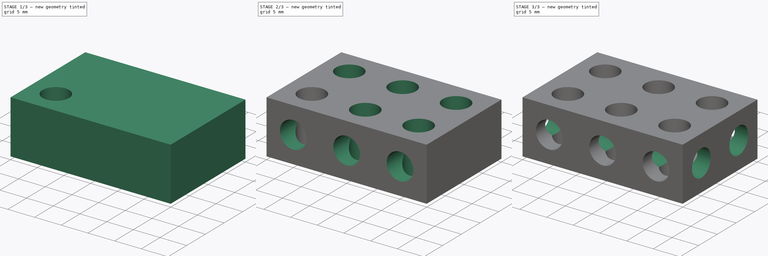
[diagram: build sequence overview — one tinted view per stage of 3, left to right]
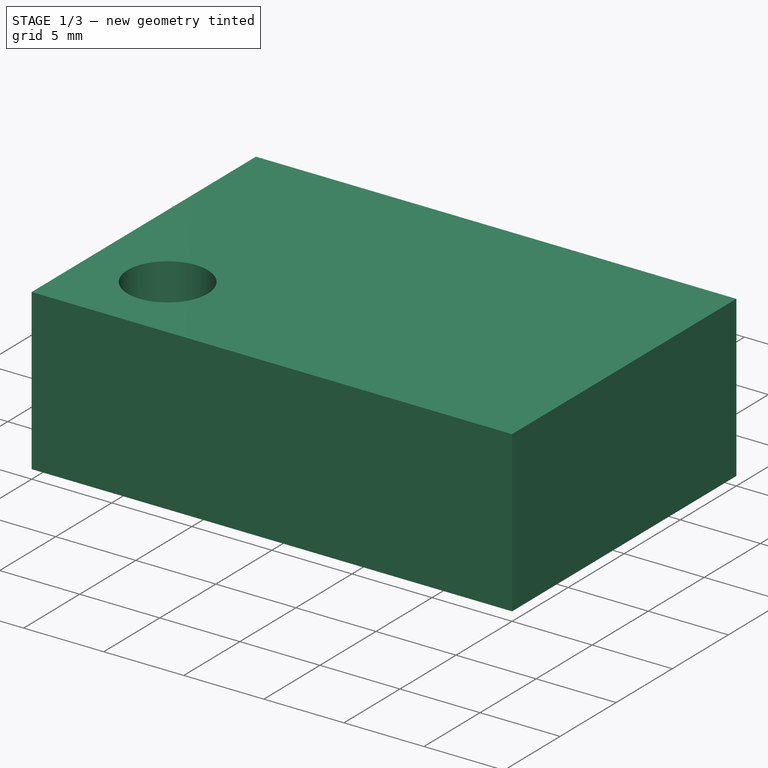
[diagram: stage 1 of 3 — iso view after this stage's code; geometry added in this stage tinted green]
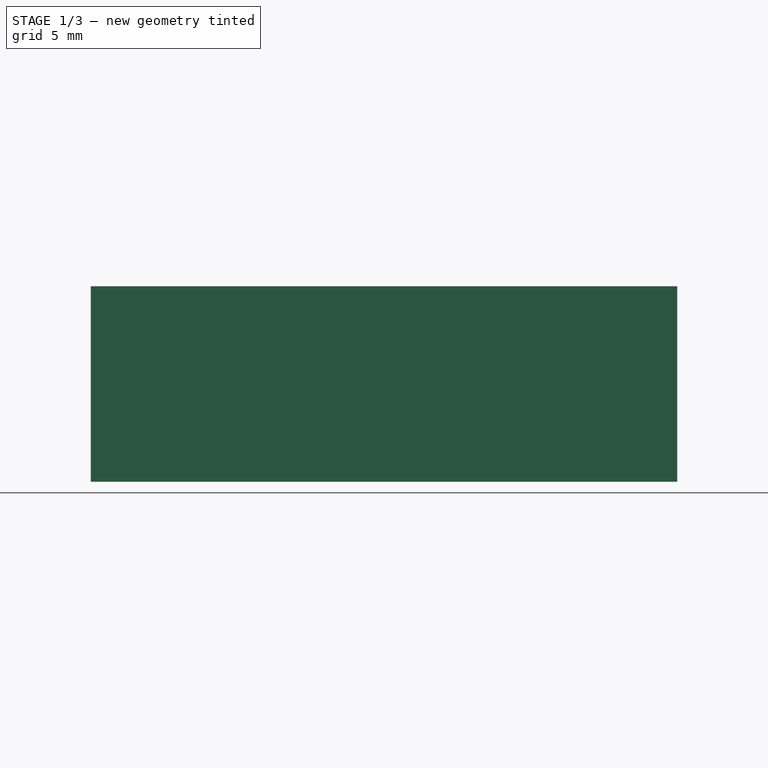
[diagram: stage 1 of 3 — front view after this stage's code; geometry added in this stage tinted green]
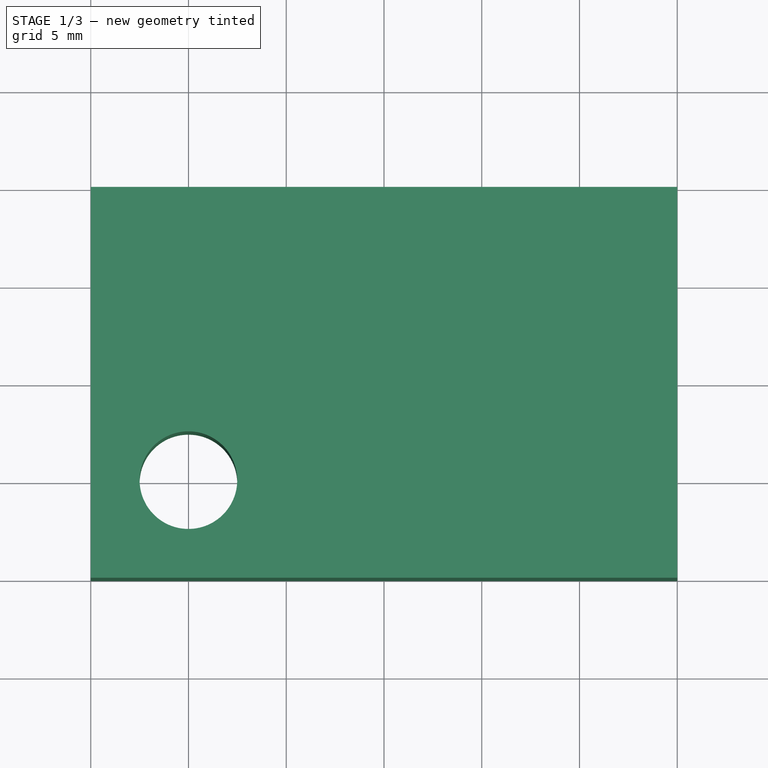
[diagram: stage 1 of 3 — top view after this stage's code; geometry added in this stage tinted green]
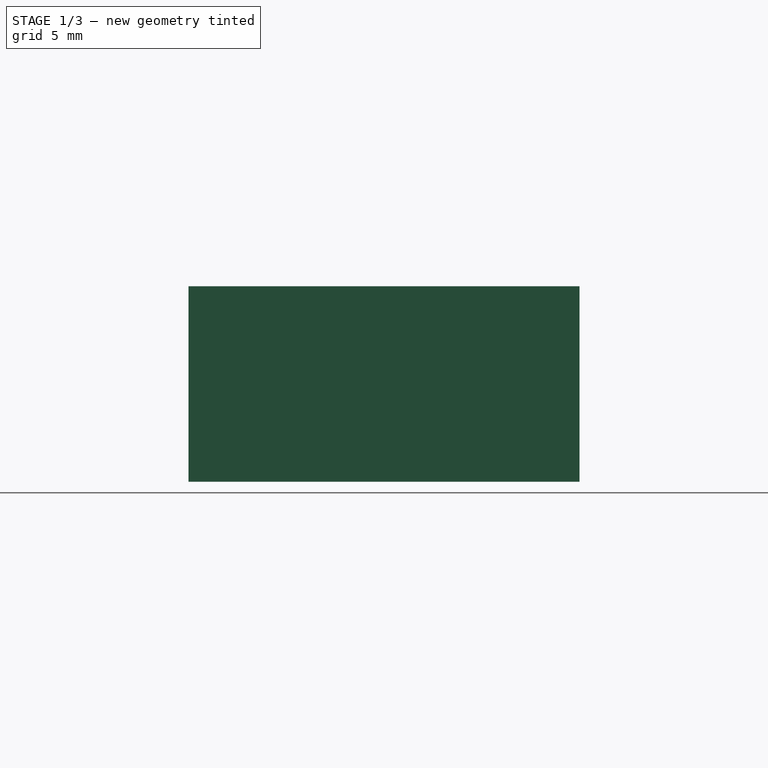
[diagram: stage 1 of 3 — right view after this stage's code; geometry added in this stage tinted green]
FCSTD DOCUMENT  (FreeCAD 2023.131R26244 +5365 (Git))
Label: 123 Block
License: All rights reserved
LicenseURL: http://en.wikipedia.org/wiki/All_rights_reserved
objects: PartDesign::LinearPattern×6, Sketcher::SketchObject×4, PartDesign::Pocket×3, PartDesign::MultiTransform×3, Spreadsheet::Sheet×1, PartDesign::Pad×1, PartDesign::Body×1
note: 48 computed .brp shape members not serialized (recipe doc carries the construction recipe); baked Part::Feature solids carry a one-line shape summary decoded from their .brp

FEATURE [Spreadsheet::Sheet] Spreadsheet  label="Parameters"
  PythonMode = false
  ShowCells = 0
  TreeRank = 1
  cells = A1=First Dimension; B1(First_Hole_Count)=1; A2=Second Dimension; B2(Second_Hole_Count)=2; A3=Third Dimension; B3(Third_Hole_Count)=3; A4=Unit of Measure; B4=cm; C4=One of the following: in or cm; A5=Hole Diameter Percent; B5=50; C5=Percecnt of a single unit; A6=Holes per Unit; B6(Holes_Per_Unit)=1; A7=Centimeters per Inch; B7=2.54; A9=First Actual Dimension; B9(First_Dimension)==B1 * (B4 == <<in>> ? B7 : 1) * 10; A10=Second Actual Dimension; B10(Second_Dimension)==B2 * (B4 == <<in>> ? B7 : 1) * 10; A11=Third Actual Dimension; B11(Third_Dimension)==B3 * (B4 == <<in>> ? B7 : 1) * 10; A12=Hole Diameter; B12(Hole_Diameter)==(B4 == <<in>> ? B7 : 1) * 10 * B5 / 100 * 0.999
FEATURE [Sketcher::SketchObject] Sketch
  ArcFitTolerance = 1e-06
  AttachmentSupport = -> [XY_Plane]
  ExternalBSplineMaxDegree = 5
  ExternalBSplineTolerance = 0.0001
  FullyConstrained = true
  InternalTolerance = 1e-06
  InvalidShape = false
  MakeInternals = false
  MapMode = 5
  Support = -> [XY_Plane]
  TreeRank = 12
  ValidateShape = true
  expr: Constraints[10] = <<Parameters>>.Second_Dimension / 2
  expr: Constraints[11] = <<Parameters>>.Third_Dimension / 2
  expr: Constraints[8] = <<Parameters>>.Third_Dimension
  expr: Constraints[9] = <<Parameters>>.Second_Dimension
  sketch-geometry (4):
    g0: LineSegment StartX=-15 StartY=10 StartZ=0 EndX=15 EndY=10 EndZ=0
    g1: LineSegment StartX=15 StartY=10 StartZ=0 EndX=15 EndY=-10 EndZ=0
    g2: LineSegment StartX=15 StartY=-10 StartZ=0 EndX=-15 EndY=-10 EndZ=0
    g3: LineSegment StartX=-15 StartY=-10 StartZ=0 EndX=-15 EndY=10 EndZ=0
  constraints (12):
    c: Coincident(g0,g1)
    c: Coincident(g1,g2)
    c: Coincident(g2,g3)
    c: Coincident(g3,g0)
    c: Horizontal(g0)
    c: Horizontal(g2)
    c: Vertical(g1)
    c: Vertical(g3)
    c: Distance(g0,g0) = 30
    c: Distance(g0,g1) = 20
    c: DistanceY(g-1,g0) = 10
    c: DistanceX(g0,g-1) = 15
FEATURE [PartDesign::Pad] Pad  label="Block"
  AddSubType = 0
  AlongSketchNormal = false
  AutoTaperInnerAngle = true
  CheckUpToFaceLimits = true
  ClaimChildren = false
  Direction = (0,0,1)
  Fit = 0
  FitJoin = 0
  InnerFit = 0
  InnerFitJoin = 0
  InvalidShape = false
  Length = 10
  Length2 = 100
  Linearize = true
  NewSolid = false
  Profile = -> Sketch
  Suppress = false
  TaperInnerAngle = 0
  TaperInnerAngleRev = 0
  TreeRank = 13
  Type = 0
  ValidateShape = true
  _ProfileBasedVersion = 1
  expr: Length = <<Parameters>>.First_Dimension
FEATURE [Sketcher::SketchObject] Sketch001
  ArcFitTolerance = 1e-06
  AttachmentSupport = -> [Pad]
  ExternalBSplineMaxDegree = 5
  ExternalBSplineTolerance = 0.0001
  FullyConstrained = true
  InternalTolerance = 1e-06
  InvalidShape = false
  MakeInternals = false
  MapMode = 5
  Placement = pos=(0,0,10) rot=(0,0,1;0rad)
  Support = -> [Pad]
  TreeRank = 14
  ValidateShape = true
  expr: Constraints[0] = <<Parameters>>.Hole_Diameter
  expr: Constraints[1] = <<Parameters>>.Second_Dimension / 2 - <<Parameters>>.Hole_Diameter
  expr: Constraints[2] = <<Parameters>>.Third_Dimension / 2 - <<Parameters>>.Hole_Diameter
  sketch-geometry (1):
    g0: Circle CenterX=-10.005 CenterY=-5.005 CenterZ=0 NormalX=0 NormalY=0 NormalZ=1 AngleXU=0 Radius=2.4975
  constraints (3):
    c: Diameter(g0) = 4.995
    c: DistanceY(g0,g-1) = 5.005
    c: DistanceX(g0,g-1) = 10.005
FEATURE [PartDesign::Pocket] Pocket  label="Top Pocket"
  AddSubType = 1
  AutoTaperInnerAngle = true
  BaseFeature = -> Pad
  CheckUpToFaceLimits = true
  ClaimChildren = false
  Fit = 0
  FitJoin = 0
  InnerFit = 0
  InnerFitJoin = 0
  InvalidShape = false
  Length = 10
  Length2 = 100
  Linearize = true
  NewSolid = false
  Profile = -> Sketch001
  Suppress = false
  TaperInnerAngle = 0
  TaperInnerAngleRev = 0
  TreeRank = 15
  Type = 0
  ValidateShape = true
  _ProfileBasedVersion = 1
  _Version = 1
  expr: Length = <<Parameters>>.First_Dimension
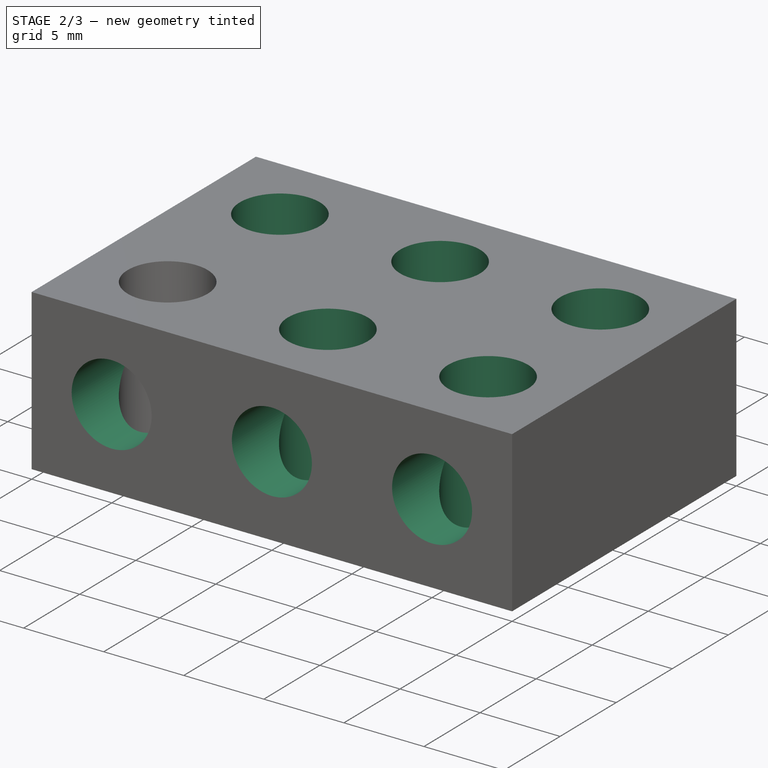
[diagram: stage 2 of 3 — iso view after this stage's code; geometry added in this stage tinted green]
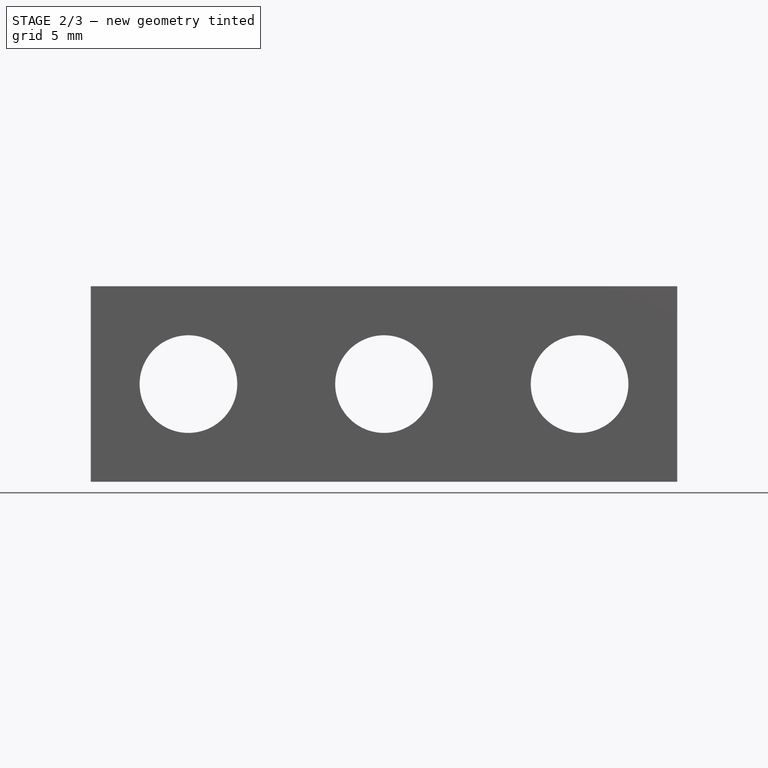
[diagram: stage 2 of 3 — front view after this stage's code; geometry added in this stage tinted green]
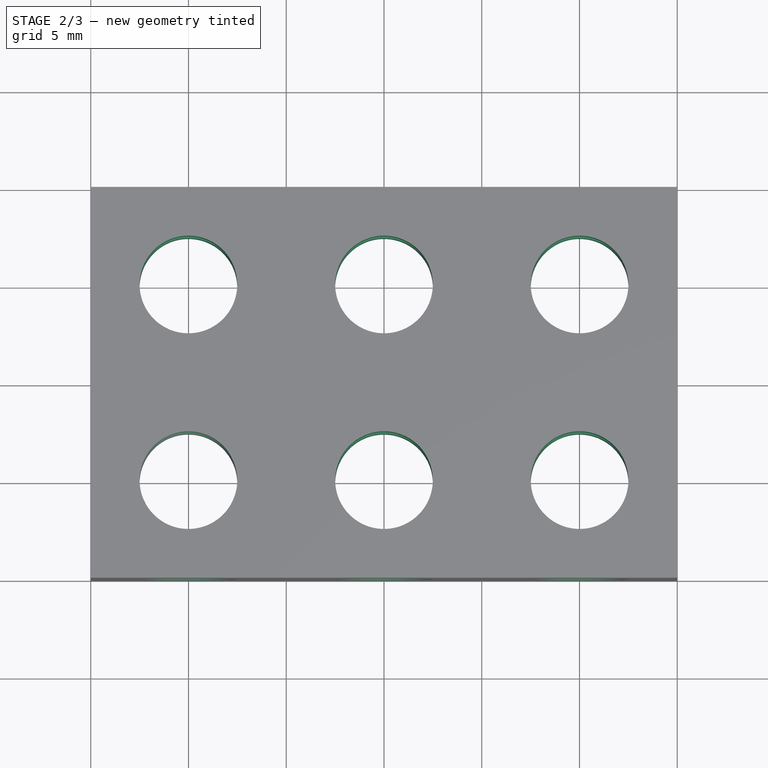
[diagram: stage 2 of 3 — top view after this stage's code; geometry added in this stage tinted green]
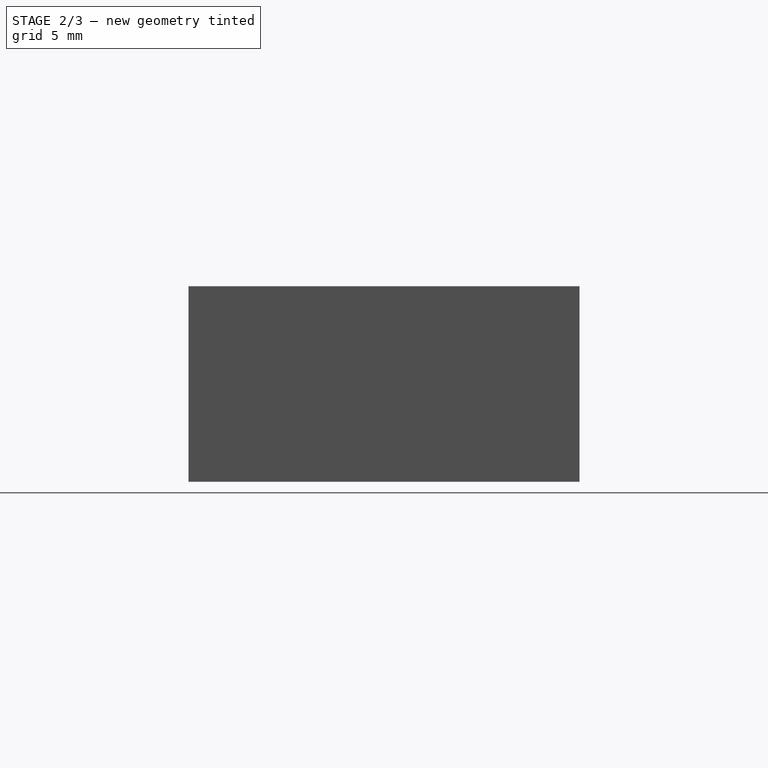
[diagram: stage 2 of 3 — right view after this stage's code; geometry added in this stage tinted green]
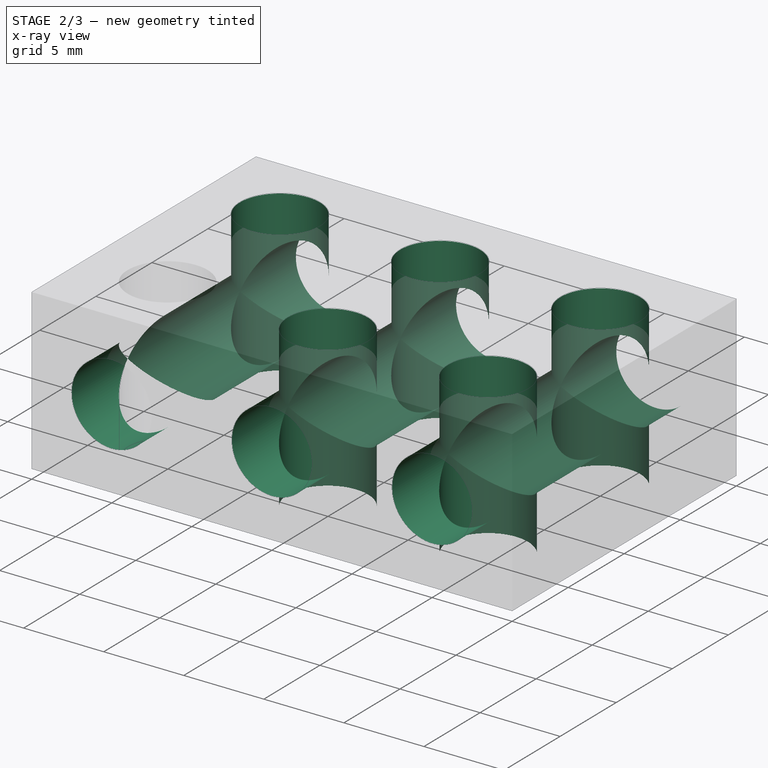
[diagram: stage 2 of 3 — x-ray composite at the iso view; earlier geometry ghosted, this stage's added geometry solid]
FEATURE [PartDesign::LinearPattern] LinearPattern
  AddSubType = 0
  CopyShape = false
  Direction = -> X_Axis
  InvalidShape = false
  Length = 20.01
  NewSolid = false
  Occurrences = 3
  ParallelTransform = true
  SubTransform = true
  Suppress = false
  TreeRank = 17
  ValidateShape = true
  _Version = 3
  expr: Length = <<Parameters>>.Third_Dimension - <<Parameters>>.Hole_Diameter * 2
  expr: Occurrences = <<Parameters>>.Third_Hole_Count * <<Parameters>>.Holes_Per_Unit
FEATURE [PartDesign::LinearPattern] LinearPattern001
  AddSubType = 0
  CopyShape = false
  Direction = -> Y_Axis
  InvalidShape = false
  Length = 10.01
  NewSolid = false
  Occurrences = 2
  ParallelTransform = true
  SubTransform = true
  Suppress = false
  TreeRank = 18
  ValidateShape = true
  _Version = 3
  expr: Length = <<Parameters>>.Second_Dimension - <<Parameters>>.Hole_Diameter * 2
  expr: Occurrences = <<Parameters>>.Second_Hole_Count * <<Parameters>>.Holes_Per_Unit
FEATURE [PartDesign::MultiTransform] MultiTransform  label="Top Hole Array"
  AddSubType = 0
  BaseFeature = -> Pocket
  CopyShape = false
  InvalidShape = false
  NewSolid = false
  OriginalSubs = -> [Pocket]
  Originals = -> [Pocket]
  ParallelTransform = true
  SubTransform = true
  Suppress = false
  Transformations = -> [LinearPattern,LinearPattern001]
  TreeRank = 16
  ValidateShape = true
  _Version = 3
FEATURE [Sketcher::SketchObject] Sketch002
  ArcFitTolerance = 1e-06
  AttachmentSupport = -> [MultiTransform]
  ExternalBSplineMaxDegree = 5
  ExternalBSplineTolerance = 0.0001
  FullyConstrained = true
  InternalTolerance = 1e-06
  InvalidShape = false
  MakeInternals = false
  MapMode = 5
  Placement = pos=(0,-10,0) rot=(1,0,0;1.5708rad)
  Support = -> [MultiTransform]
  TreeRank = 19
  ValidateShape = true
  expr: Constraints[0] = <<Parameters>>.Hole_Diameter
  expr: Constraints[1] = <<Parameters>>.Third_Dimension / 2 - <<Parameters>>.Hole_Diameter
  expr: Constraints[2] = <<Parameters>>.Hole_Diameter
  sketch-geometry (1):
    g0: Circle CenterX=-10.005 CenterY=4.995 CenterZ=0 NormalX=0 NormalY=0 NormalZ=1 AngleXU=0 Radius=2.4975
  constraints (3):
    c: Diameter(g0) = 4.995
    c: DistanceX(g0,g-1) = 10.005
    c: DistanceY(g-1,g0) = 4.995
FEATURE [PartDesign::Pocket] Pocket001  label="Front Pockets"
  AddSubType = 1
  AutoTaperInnerAngle = true
  BaseFeature = -> MultiTransform
  CheckUpToFaceLimits = true
  ClaimChildren = false
  Fit = 0
  FitJoin = 0
  InnerFit = 0
  InnerFitJoin = 0
  InvalidShape = false
  Length = 20
  Length2 = 100
  Linearize = true
  NewSolid = false
  Profile = -> Sketch002
  Suppress = false
  TaperInnerAngle = 0
  TaperInnerAngleRev = 0
  TreeRank = 20
  Type = 0
  ValidateShape = true
  _ProfileBasedVersion = 1
  _Version = 1
  expr: Length = <<Parameters>>.Second_Dimension
FEATURE [PartDesign::LinearPattern] LinearPattern002
  AddSubType = 0
  CopyShape = false
  Direction = -> X_Axis
  InvalidShape = false
  Length = 20.01
  NewSolid = false
  Occurrences = 3
  ParallelTransform = true
  SubTransform = true
  Suppress = false
  TreeRank = 22
  ValidateShape = true
  _Version = 3
  expr: Length = <<Parameters>>.Third_Dimension - <<Parameters>>.Hole_Diameter * 2
  expr: Occurrences = <<Parameters>>.Third_Hole_Count * <<Parameters>>.Holes_Per_Unit
FEATURE [PartDesign::LinearPattern] LinearPattern003
  AddSubType = 0
  CopyShape = false
  Direction = -> Z_Axis
  InvalidShape = false
  Length = 0.01
  NewSolid = false
  Occurrences = 1
  ParallelTransform = true
  SubTransform = true
  Suppress = false
  TreeRank = 23
  ValidateShape = true
  _Version = 3
  expr: Length = <<Parameters>>.First_Dimension - <<Parameters>>.Hole_Diameter * 2
  expr: Occurrences = <<Parameters>>.First_Hole_Count * <<Parameters>>.Holes_Per_Unit
FEATURE [PartDesign::MultiTransform] MultiTransform001  label="Front Hole Array"
  AddSubType = 0
  BaseFeature = -> Pocket001
  CopyShape = false
  InvalidShape = false
  NewSolid = false
  OriginalSubs = -> [Pocket001]
  Originals = -> [Pocket001]
  ParallelTransform = true
  SubTransform = true
  Suppress = false
  Transformations = -> [LinearPattern002,LinearPattern003]
  TreeRank = 21
  ValidateShape = true
  _Version = 3
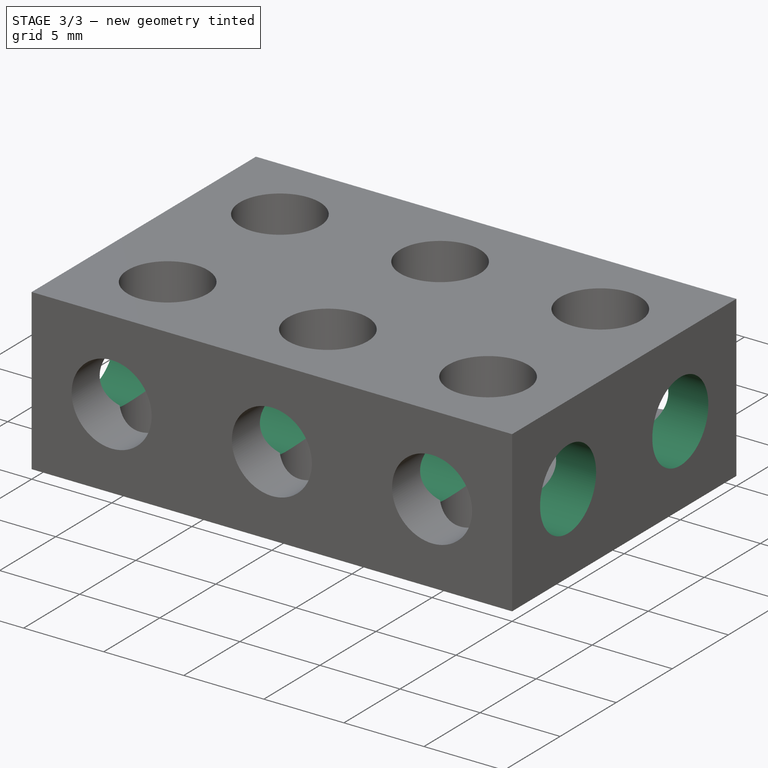
[diagram: stage 3 of 3 — iso view after this stage's code; geometry added in this stage tinted green]
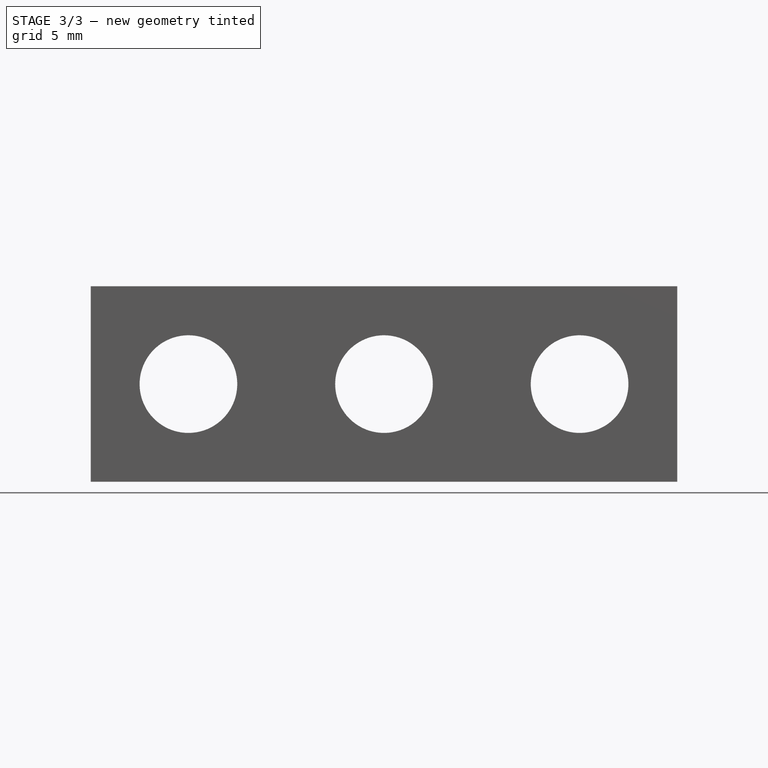
[diagram: stage 3 of 3 — front view after this stage's code; geometry added in this stage tinted green]
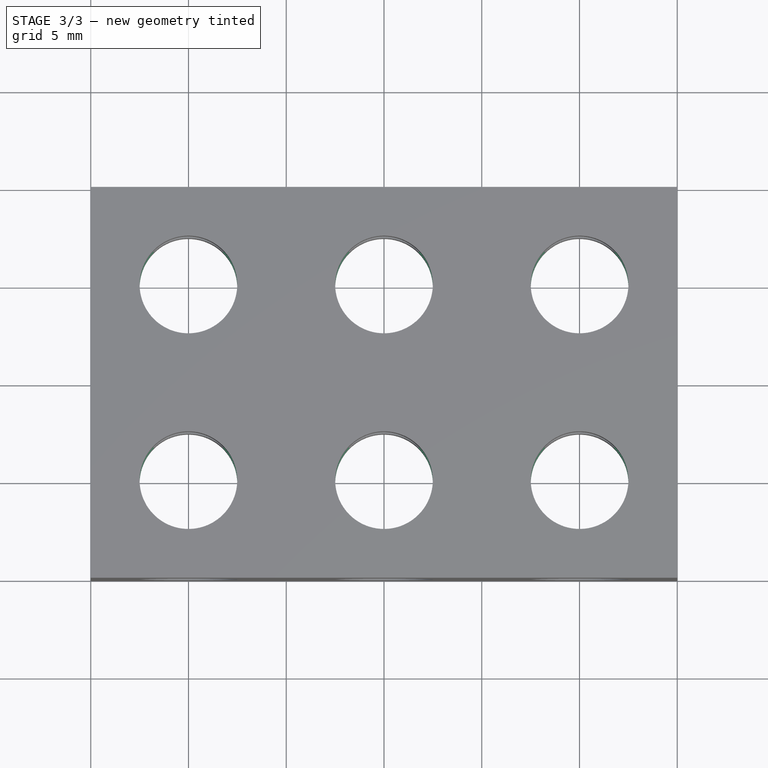
[diagram: stage 3 of 3 — top view after this stage's code; geometry added in this stage tinted green]
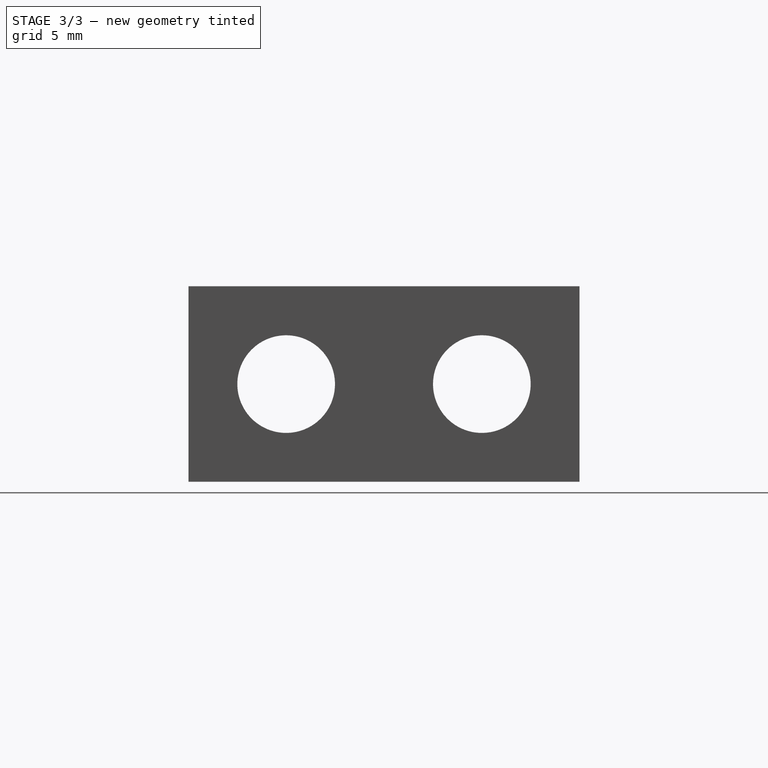
[diagram: stage 3 of 3 — right view after this stage's code; geometry added in this stage tinted green]
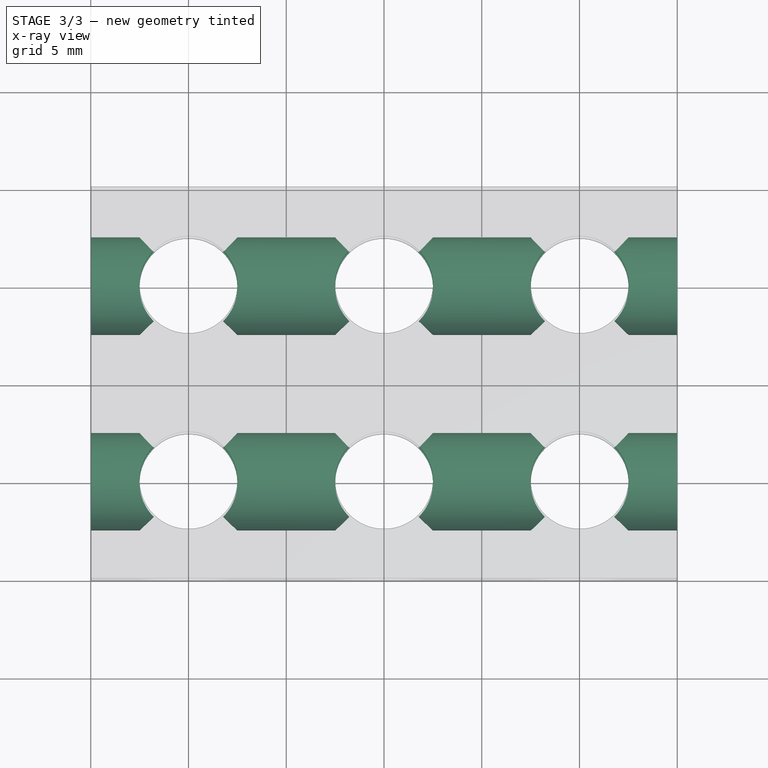
[diagram: stage 3 of 3 — x-ray composite at the top view; earlier geometry ghosted, this stage's added geometry solid]
FEATURE [Sketcher::SketchObject] Sketch003
  ArcFitTolerance = 1e-06
  AttachmentSupport = -> [MultiTransform001]
  ExternalBSplineMaxDegree = 5
  ExternalBSplineTolerance = 0.0001
  FullyConstrained = true
  InternalTolerance = 1e-06
  InvalidShape = false
  MakeInternals = false
  MapMode = 5
  Placement = pos=(-15,0,0) rot=(0.57735,-0.57735,-0.57735;2.0944rad)
  Support = -> [MultiTransform001]
  TreeRank = 24
  ValidateShape = true
  expr: Constraints[0] = <<Parameters>>.Hole_Diameter
  expr: Constraints[1] = <<Parameters>>.Second_Dimension / 2 - <<Parameters>>.Hole_Diameter
  expr: Constraints[2] = <<Parameters>>.Hole_Diameter
  sketch-geometry (1):
    g0: Circle CenterX=-5.005 CenterY=4.995 CenterZ=0 NormalX=0 NormalY=0 NormalZ=1 AngleXU=0 Radius=2.4975
  constraints (3):
    c: Diameter(g0) = 4.995
    c: DistanceX(g0,g-1) = 5.005
    c: DistanceY(g-1,g0) = 4.995
FEATURE [PartDesign::Pocket] Pocket002  label="Left Pockets"
  AddSubType = 1
  AutoTaperInnerAngle = true
  BaseFeature = -> MultiTransform001
  CheckUpToFaceLimits = true
  ClaimChildren = false
  Fit = 0
  FitJoin = 0
  InnerFit = 0
  InnerFitJoin = 0
  InvalidShape = false
  Length = 30
  Length2 = 100
  Linearize = true
  NewSolid = false
  Profile = -> Sketch003
  Suppress = false
  TaperInnerAngle = 0
  TaperInnerAngleRev = 0
  TreeRank = 25
  Type = 0
  ValidateShape = true
  _ProfileBasedVersion = 1
  _Version = 1
  expr: Length = <<Parameters>>.Third_Dimension
FEATURE [PartDesign::LinearPattern] LinearPattern004
  AddSubType = 0
  CopyShape = false
  Direction = -> Sketch003 [H_Axis]
  InvalidShape = false
  Length = 10.01
  NewSolid = false
  Occurrences = 2
  ParallelTransform = true
  SubTransform = true
  Suppress = false
  TreeRank = 27
  ValidateShape = true
  _Version = 3
  expr: Length = <<Parameters>>.Second_Dimension - <<Parameters>>.Hole_Diameter * 2
  expr: Occurrences = <<Parameters>>.Second_Hole_Count * <<Parameters>>.Holes_Per_Unit
FEATURE [PartDesign::LinearPattern] LinearPattern005
  AddSubType = 0
  CopyShape = false
  Direction = -> Z_Axis
  InvalidShape = false
  Length = 0.01
  NewSolid = false
  Occurrences = 1
  ParallelTransform = true
  SubTransform = true
  Suppress = false
  TreeRank = 28
  ValidateShape = true
  _Version = 3
  expr: Length = <<Parameters>>.First_Dimension - <<Parameters>>.Hole_Diameter * 2
  expr: Occurrences = <<Parameters>>.First_Hole_Count * <<Parameters>>.Holes_Per_Unit
FEATURE [PartDesign::MultiTransform] MultiTransform002  label="Left Hole Array"
  AddSubType = 0
  BaseFeature = -> Pocket002
  CopyShape = false
  InvalidShape = false
  NewSolid = false
  OriginalSubs = -> [Pocket002]
  Originals = -> [Pocket002]
  ParallelTransform = true
  SubTransform = true
  Suppress = false
  Transformations = -> [LinearPattern004,LinearPattern005]
  TreeRank = 26
  ValidateShape = true
  _Version = 3
FEATURE [PartDesign::Body] Body
  AutoGroupSolids = false
  ClaimAllChildren = false
  ExportMode = 0
  Group = -> [Sketch,Pad,Sketch001,Pocket,MultiTransform,LinearPattern,LinearPattern001,Sketch002,Pocket001,MultiTransform001,LinearPattern002,LinearPattern003,Sketch003,Pocket002,MultiTransform002,LinearPattern004,LinearPattern005]
  InvalidShape = false
  Origin = -> Origin
  Tip = -> MultiTransform002
  TreeRank = 11
  ValidateShape = true
  _ExportChildren = -> [Pad,Pocket,MultiTransform,Pocket001,MultiTransform001,Pocket002,MultiTransform002]
  _GroupVersion = 1
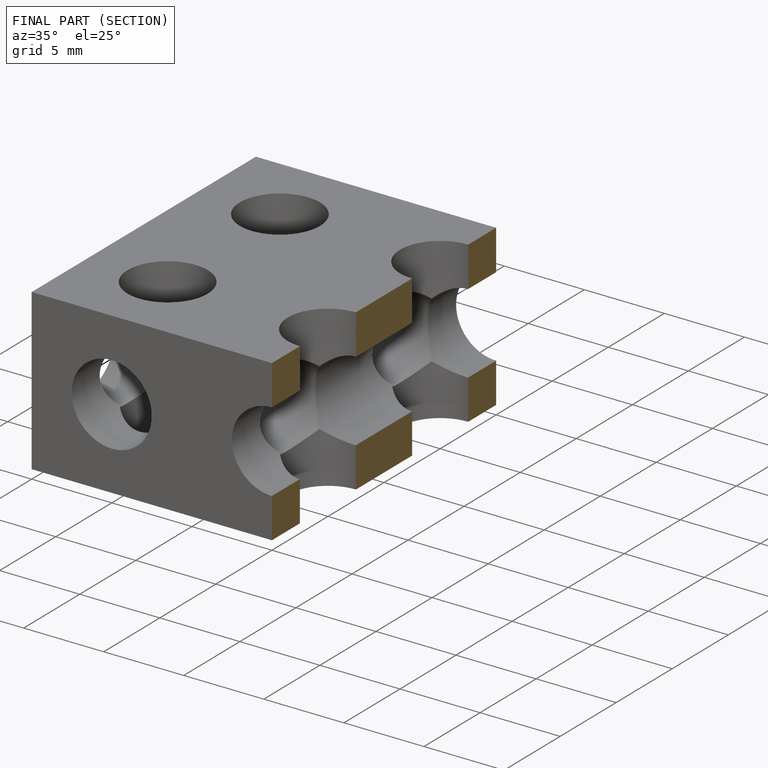
[diagram: finished part — half-section view (interior)]
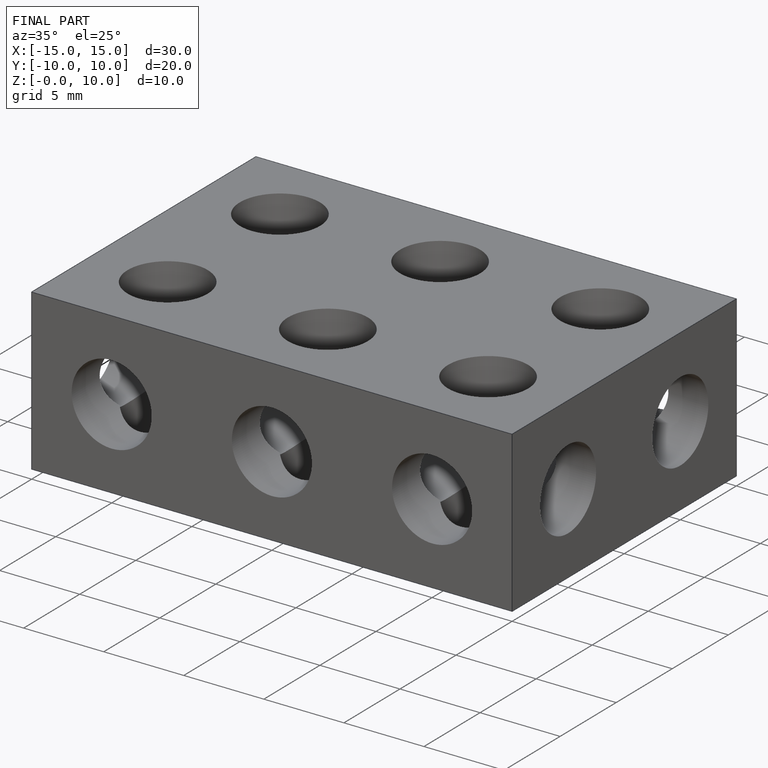
[diagram: finished part — iso view with bounding-box wireframe]
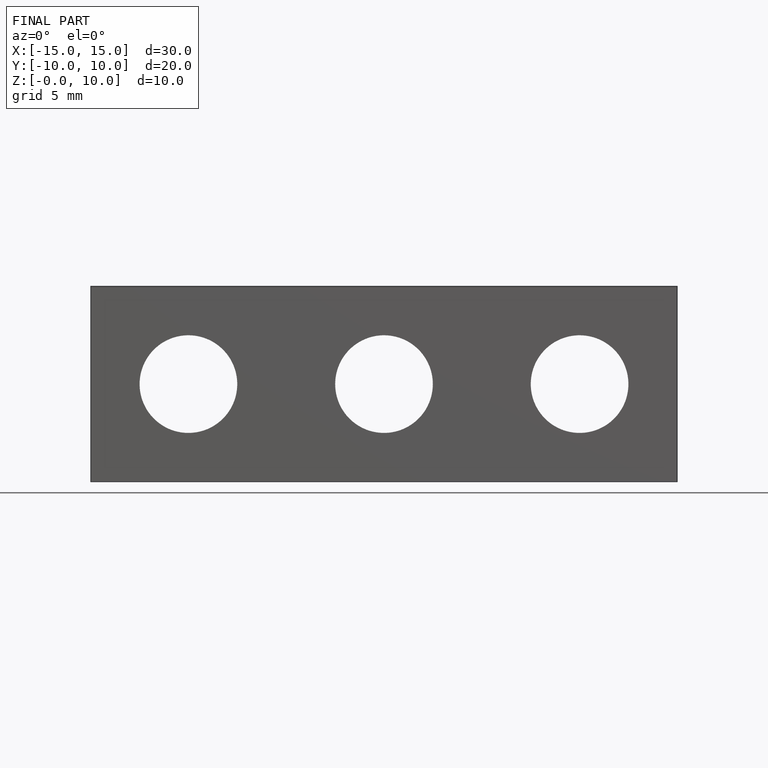
[diagram: finished part — front view with bounding-box wireframe]
